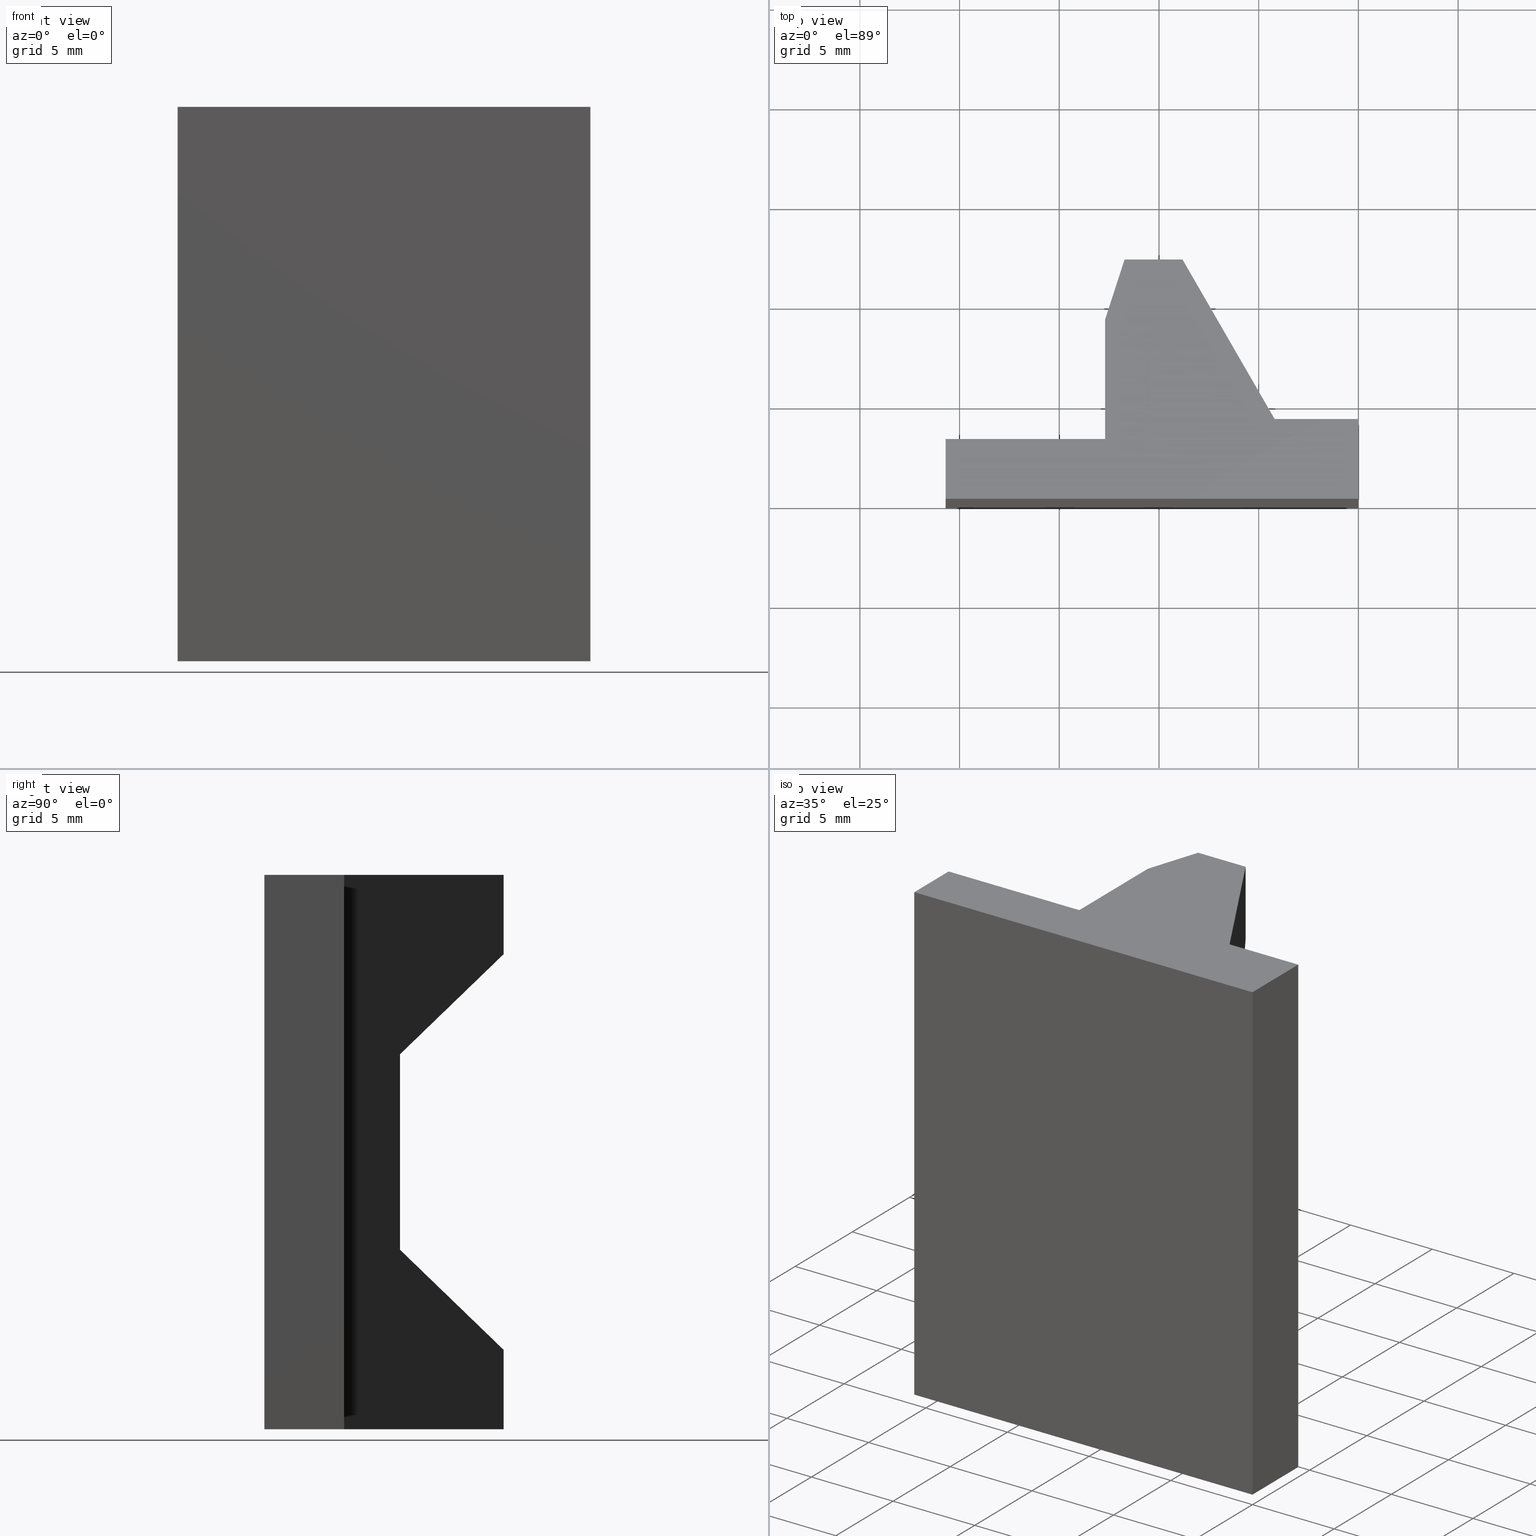
[diagram: canonical four-view strip — front | top / right | iso, engineering-drawing reading convention]
A machine part, canonical four-view strip (front | top / right | iso — engineering-drawing reading convention). The complete STEP part file that produces these views, byte-faithful:
ISO-10303-21;
HEADER;
/* Generated by software containing ST-Developer
 * from STEP Tools, Inc. (www.steptools.com) 
 */

FILE_DESCRIPTION(
/* description */ (''),
/* implementation_level */ '2;1');

FILE_NAME(
/* name */ 'E_3_01_10_05_00_WKZ-0254-01.stp',
/* time_stamp */ '2025-11-24T14:13:13+01:00',
/* author */ ('d.fischer'),
/* organization */ (''),
/* preprocessor_version */ 'ST-DEVELOPER v20',
/* originating_system */ 'Autodesk Inventor 2025',
/* authorisation */ '');

FILE_SCHEMA (('AUTOMOTIVE_DESIGN { 1 0 10303 214 3 1 1 }'));
ENDSEC;

DATA;
#10=MECHANICAL_DESIGN_GEOMETRIC_PRESENTATION_REPRESENTATION('',(#13),#522);
#11=SHAPE_REPRESENTATION_RELATIONSHIP('SRR','None',#529,#12);
#12=ADVANCED_BREP_SHAPE_REPRESENTATION('',(#14),#521);
#13=STYLED_ITEM('',(#538),#14);
#14=MANIFOLD_SOLID_BREP('Volumenk\X\F6rper1',#317);
#15=FACE_OUTER_BOUND('',#31,.T.);
#16=FACE_OUTER_BOUND('',#32,.T.);
#17=FACE_OUTER_BOUND('',#33,.T.);
#18=FACE_OUTER_BOUND('',#34,.T.);
#19=FACE_OUTER_BOUND('',#35,.T.);
#20=FACE_OUTER_BOUND('',#36,.T.);
#21=FACE_OUTER_BOUND('',#37,.T.);
#22=FACE_OUTER_BOUND('',#38,.T.);
#23=FACE_OUTER_BOUND('',#39,.T.);
#24=FACE_OUTER_BOUND('',#40,.T.);
#25=FACE_OUTER_BOUND('',#41,.T.);
#26=FACE_OUTER_BOUND('',#42,.T.);
#27=FACE_OUTER_BOUND('',#43,.T.);
#28=FACE_OUTER_BOUND('',#44,.T.);
#29=FACE_OUTER_BOUND('',#45,.T.);
#30=FACE_OUTER_BOUND('',#46,.T.);
#31=EDGE_LOOP('',(#201,#202,#203,#204,#205));
#32=EDGE_LOOP('',(#206,#207,#208,#209,#210));
#33=EDGE_LOOP('',(#211,#212,#213,#214));
#34=EDGE_LOOP('',(#215,#216,#217,#218));
#35=EDGE_LOOP('',(#219,#220,#221,#222));
#36=EDGE_LOOP('',(#223,#224,#225,#226));
#37=EDGE_LOOP('',(#227,#228,#229,#230));
#38=EDGE_LOOP('',(#231,#232,#233,#234,#235,#236,#237,#238));
#39=EDGE_LOOP('',(#239,#240,#241,#242,#243,#244,#245,#246,#247));
#40=EDGE_LOOP('',(#248,#249,#250,#251));
#41=EDGE_LOOP('',(#252,#253,#254,#255));
#42=EDGE_LOOP('',(#256,#257,#258,#259,#260,#261,#262,#263));
#43=EDGE_LOOP('',(#264,#265,#266,#267));
#44=EDGE_LOOP('',(#268,#269,#270,#271));
#45=EDGE_LOOP('',(#272,#273,#274,#275));
#46=EDGE_LOOP('',(#276,#277,#278,#279,#280,#281,#282,#283,#284));
#47=LINE('',#436,#89);
#48=LINE('',#438,#90);
#49=LINE('',#440,#91);
#50=LINE('',#442,#92);
#51=LINE('',#443,#93);
#52=LINE('',#447,#94);
#53=LINE('',#449,#95);
#54=LINE('',#451,#96);
#55=LINE('',#453,#97);
#56=LINE('',#454,#98);
#57=LINE('',#456,#99);
#58=LINE('',#457,#100);
#59=LINE('',#460,#101);
#60=LINE('',#462,#102);
#61=LINE('',#463,#103);
#62=LINE('',#466,#104);
#63=LINE('',#468,#105);
#64=LINE('',#469,#106);
#65=LINE('',#472,#107);
#66=LINE('',#473,#108);
#67=LINE('',#476,#109);
#68=LINE('',#477,#110);
#69=LINE('',#480,#111);
#70=LINE('',#482,#112);
#71=LINE('',#483,#113);
#72=LINE('',#487,#114);
#73=LINE('',#489,#115);
#74=LINE('',#491,#116);
#75=LINE('',#492,#117);
#76=LINE('',#494,#118);
#77=LINE('',#495,#119);
#78=LINE('',#499,#120);
#79=LINE('',#500,#121);
#80=LINE('',#501,#122);
#81=LINE('',#503,#123);
#82=LINE('',#506,#124);
#83=LINE('',#507,#125);
#84=LINE('',#510,#126);
#85=LINE('',#511,#127);
#86=LINE('',#514,#128);
#87=LINE('',#515,#129);
#88=LINE('',#517,#130);
#89=VECTOR('',#360,10.);
#90=VECTOR('',#361,10.);
#91=VECTOR('',#362,10.);
#92=VECTOR('',#363,10.);
#93=VECTOR('',#364,10.);
#94=VECTOR('',#367,10.);
#95=VECTOR('',#368,10.);
#96=VECTOR('',#369,10.);
#97=VECTOR('',#370,10.);
#98=VECTOR('',#371,10.);
#99=VECTOR('',#374,10.);
#100=VECTOR('',#375,10.);
#101=VECTOR('',#378,10.);
#102=VECTOR('',#379,10.);
#103=VECTOR('',#380,10.);
#104=VECTOR('',#383,10.);
#105=VECTOR('',#384,10.);
#106=VECTOR('',#385,10.);
#107=VECTOR('',#388,10.);
#108=VECTOR('',#389,10.);
#109=VECTOR('',#392,10.);
#110=VECTOR('',#393,10.);
#111=VECTOR('',#396,10.);
#112=VECTOR('',#397,10.);
#113=VECTOR('',#398,10.);
#114=VECTOR('',#401,10.);
#115=VECTOR('',#402,10.);
#116=VECTOR('',#403,10.);
#117=VECTOR('',#404,10.);
#118=VECTOR('',#405,10.);
#119=VECTOR('',#406,10.);
#120=VECTOR('',#409,10.);
#121=VECTOR('',#410,10.);
#122=VECTOR('',#411,10.);
#123=VECTOR('',#414,10.);
#124=VECTOR('',#417,10.);
#125=VECTOR('',#418,10.);
#126=VECTOR('',#421,10.);
#127=VECTOR('',#422,10.);
#128=VECTOR('',#425,10.);
#129=VECTOR('',#426,10.);
#130=VECTOR('',#429,10.);
#131=VERTEX_POINT('',#434);
#132=VERTEX_POINT('',#435);
#133=VERTEX_POINT('',#437);
#134=VERTEX_POINT('',#439);
#135=VERTEX_POINT('',#441);
#136=VERTEX_POINT('',#445);
#137=VERTEX_POINT('',#446);
#138=VERTEX_POINT('',#448);
#139=VERTEX_POINT('',#450);
#140=VERTEX_POINT('',#452);
#141=VERTEX_POINT('',#459);
#142=VERTEX_POINT('',#461);
#143=VERTEX_POINT('',#465);
#144=VERTEX_POINT('',#467);
#145=VERTEX_POINT('',#471);
#146=VERTEX_POINT('',#475);
#147=VERTEX_POINT('',#479);
#148=VERTEX_POINT('',#481);
#149=VERTEX_POINT('',#485);
#150=VERTEX_POINT('',#486);
#151=VERTEX_POINT('',#488);
#152=VERTEX_POINT('',#490);
#153=VERTEX_POINT('',#493);
#154=VERTEX_POINT('',#497);
#155=VERTEX_POINT('',#498);
#156=VERTEX_POINT('',#505);
#157=VERTEX_POINT('',#509);
#158=VERTEX_POINT('',#513);
#159=EDGE_CURVE('',#131,#132,#47,.T.);
#160=EDGE_CURVE('',#133,#131,#48,.T.);
#161=EDGE_CURVE('',#134,#133,#49,.T.);
#162=EDGE_CURVE('',#135,#134,#50,.T.);
#163=EDGE_CURVE('',#132,#135,#51,.T.);
#164=EDGE_CURVE('',#136,#137,#52,.T.);
#165=EDGE_CURVE('',#138,#136,#53,.T.);
#166=EDGE_CURVE('',#139,#138,#54,.T.);
#167=EDGE_CURVE('',#140,#139,#55,.T.);
#168=EDGE_CURVE('',#140,#137,#56,.T.);
#169=EDGE_CURVE('',#137,#131,#57,.T.);
#170=EDGE_CURVE('',#133,#140,#58,.T.);
#171=EDGE_CURVE('',#136,#141,#59,.T.);
#172=EDGE_CURVE('',#141,#142,#60,.T.);
#173=EDGE_CURVE('',#138,#142,#61,.T.);
#174=EDGE_CURVE('',#143,#135,#62,.T.);
#175=EDGE_CURVE('',#143,#144,#63,.T.);
#176=EDGE_CURVE('',#144,#132,#64,.T.);
#177=EDGE_CURVE('',#142,#145,#65,.T.);
#178=EDGE_CURVE('',#139,#145,#66,.T.);
#179=EDGE_CURVE('',#146,#134,#67,.T.);
#180=EDGE_CURVE('',#146,#143,#68,.T.);
#181=EDGE_CURVE('',#145,#147,#69,.T.);
#182=EDGE_CURVE('',#148,#147,#70,.T.);
#183=EDGE_CURVE('',#148,#146,#71,.T.);
#184=EDGE_CURVE('',#149,#150,#72,.T.);
#185=EDGE_CURVE('',#151,#149,#73,.T.);
#186=EDGE_CURVE('',#152,#151,#74,.T.);
#187=EDGE_CURVE('',#147,#152,#75,.T.);
#188=EDGE_CURVE('',#153,#141,#76,.T.);
#189=EDGE_CURVE('',#150,#153,#77,.T.);
#190=EDGE_CURVE('',#154,#155,#78,.T.);
#191=EDGE_CURVE('',#155,#152,#79,.T.);
#192=EDGE_CURVE('',#154,#151,#80,.T.);
#193=EDGE_CURVE('',#155,#148,#81,.T.);
#194=EDGE_CURVE('',#144,#156,#82,.T.);
#195=EDGE_CURVE('',#156,#153,#83,.T.);
#196=EDGE_CURVE('',#156,#157,#84,.T.);
#197=EDGE_CURVE('',#157,#150,#85,.T.);
#198=EDGE_CURVE('',#157,#158,#86,.T.);
#199=EDGE_CURVE('',#149,#158,#87,.T.);
#200=EDGE_CURVE('',#158,#154,#88,.T.);
#201=ORIENTED_EDGE('',*,*,#159,.F.);
#202=ORIENTED_EDGE('',*,*,#160,.F.);
#203=ORIENTED_EDGE('',*,*,#161,.F.);
#204=ORIENTED_EDGE('',*,*,#162,.F.);
#205=ORIENTED_EDGE('',*,*,#163,.F.);
#206=ORIENTED_EDGE('',*,*,#164,.F.);
#207=ORIENTED_EDGE('',*,*,#165,.F.);
#208=ORIENTED_EDGE('',*,*,#166,.F.);
#209=ORIENTED_EDGE('',*,*,#167,.F.);
#210=ORIENTED_EDGE('',*,*,#168,.T.);
#211=ORIENTED_EDGE('',*,*,#169,.F.);
#212=ORIENTED_EDGE('',*,*,#168,.F.);
#213=ORIENTED_EDGE('',*,*,#170,.F.);
#214=ORIENTED_EDGE('',*,*,#160,.T.);
#215=ORIENTED_EDGE('',*,*,#165,.T.);
#216=ORIENTED_EDGE('',*,*,#171,.T.);
#217=ORIENTED_EDGE('',*,*,#172,.T.);
#218=ORIENTED_EDGE('',*,*,#173,.F.);
#219=ORIENTED_EDGE('',*,*,#163,.T.);
#220=ORIENTED_EDGE('',*,*,#174,.F.);
#221=ORIENTED_EDGE('',*,*,#175,.T.);
#222=ORIENTED_EDGE('',*,*,#176,.T.);
#223=ORIENTED_EDGE('',*,*,#166,.T.);
#224=ORIENTED_EDGE('',*,*,#173,.T.);
#225=ORIENTED_EDGE('',*,*,#177,.T.);
#226=ORIENTED_EDGE('',*,*,#178,.F.);
#227=ORIENTED_EDGE('',*,*,#162,.T.);
#228=ORIENTED_EDGE('',*,*,#179,.F.);
#229=ORIENTED_EDGE('',*,*,#180,.T.);
#230=ORIENTED_EDGE('',*,*,#174,.T.);
#231=ORIENTED_EDGE('',*,*,#161,.T.);
#232=ORIENTED_EDGE('',*,*,#170,.T.);
#233=ORIENTED_EDGE('',*,*,#167,.T.);
#234=ORIENTED_EDGE('',*,*,#178,.T.);
#235=ORIENTED_EDGE('',*,*,#181,.T.);
#236=ORIENTED_EDGE('',*,*,#182,.F.);
#237=ORIENTED_EDGE('',*,*,#183,.T.);
#238=ORIENTED_EDGE('',*,*,#179,.T.);
#239=ORIENTED_EDGE('',*,*,#184,.F.);
#240=ORIENTED_EDGE('',*,*,#185,.F.);
#241=ORIENTED_EDGE('',*,*,#186,.F.);
#242=ORIENTED_EDGE('',*,*,#187,.F.);
#243=ORIENTED_EDGE('',*,*,#181,.F.);
#244=ORIENTED_EDGE('',*,*,#177,.F.);
#245=ORIENTED_EDGE('',*,*,#172,.F.);
#246=ORIENTED_EDGE('',*,*,#188,.F.);
#247=ORIENTED_EDGE('',*,*,#189,.F.);
#248=ORIENTED_EDGE('',*,*,#190,.T.);
#249=ORIENTED_EDGE('',*,*,#191,.T.);
#250=ORIENTED_EDGE('',*,*,#186,.T.);
#251=ORIENTED_EDGE('',*,*,#192,.F.);
#252=ORIENTED_EDGE('',*,*,#193,.T.);
#253=ORIENTED_EDGE('',*,*,#182,.T.);
#254=ORIENTED_EDGE('',*,*,#187,.T.);
#255=ORIENTED_EDGE('',*,*,#191,.F.);
#256=ORIENTED_EDGE('',*,*,#159,.T.);
#257=ORIENTED_EDGE('',*,*,#176,.F.);
#258=ORIENTED_EDGE('',*,*,#194,.T.);
#259=ORIENTED_EDGE('',*,*,#195,.T.);
#260=ORIENTED_EDGE('',*,*,#188,.T.);
#261=ORIENTED_EDGE('',*,*,#171,.F.);
#262=ORIENTED_EDGE('',*,*,#164,.T.);
#263=ORIENTED_EDGE('',*,*,#169,.T.);
#264=ORIENTED_EDGE('',*,*,#196,.T.);
#265=ORIENTED_EDGE('',*,*,#197,.T.);
#266=ORIENTED_EDGE('',*,*,#189,.T.);
#267=ORIENTED_EDGE('',*,*,#195,.F.);
#268=ORIENTED_EDGE('',*,*,#198,.T.);
#269=ORIENTED_EDGE('',*,*,#199,.F.);
#270=ORIENTED_EDGE('',*,*,#184,.T.);
#271=ORIENTED_EDGE('',*,*,#197,.F.);
#272=ORIENTED_EDGE('',*,*,#200,.T.);
#273=ORIENTED_EDGE('',*,*,#192,.T.);
#274=ORIENTED_EDGE('',*,*,#185,.T.);
#275=ORIENTED_EDGE('',*,*,#199,.T.);
#276=ORIENTED_EDGE('',*,*,#190,.F.);
#277=ORIENTED_EDGE('',*,*,#200,.F.);
#278=ORIENTED_EDGE('',*,*,#198,.F.);
#279=ORIENTED_EDGE('',*,*,#196,.F.);
#280=ORIENTED_EDGE('',*,*,#194,.F.);
#281=ORIENTED_EDGE('',*,*,#175,.F.);
#282=ORIENTED_EDGE('',*,*,#180,.F.);
#283=ORIENTED_EDGE('',*,*,#183,.F.);
#284=ORIENTED_EDGE('',*,*,#193,.F.);
#285=PLANE('',#340);
#286=PLANE('',#341);
#287=PLANE('',#342);
#288=PLANE('',#343);
#289=PLANE('',#344);
#290=PLANE('',#345);
#291=PLANE('',#346);
#292=PLANE('',#347);
#293=PLANE('',#348);
#294=PLANE('',#349);
#295=PLANE('',#350);
#296=PLANE('',#351);
#297=PLANE('',#352);
#298=PLANE('',#353);
#299=PLANE('',#354);
#300=PLANE('',#355);
#301=ADVANCED_FACE('',(#15),#285,.F.);
#302=ADVANCED_FACE('',(#16),#286,.F.);
#303=ADVANCED_FACE('',(#17),#287,.F.);
#304=ADVANCED_FACE('',(#18),#288,.T.);
#305=ADVANCED_FACE('',(#19),#289,.T.);
#306=ADVANCED_FACE('',(#20),#290,.T.);
#307=ADVANCED_FACE('',(#21),#291,.T.);
#308=ADVANCED_FACE('',(#22),#292,.T.);
#309=ADVANCED_FACE('',(#23),#293,.F.);
#310=ADVANCED_FACE('',(#24),#294,.T.);
#311=ADVANCED_FACE('',(#25),#295,.T.);
#312=ADVANCED_FACE('',(#26),#296,.T.);
#313=ADVANCED_FACE('',(#27),#297,.T.);
#314=ADVANCED_FACE('',(#28),#298,.T.);
#315=ADVANCED_FACE('',(#29),#299,.T.);
#316=ADVANCED_FACE('',(#30),#300,.T.);
#317=CLOSED_SHELL('',(#301,#302,#303,#304,#305,#306,#307,#308,#309,#310,
#311,#312,#313,#314,#315,#316));
#318=DERIVED_UNIT_ELEMENT(#321,1.);
#319=DERIVED_UNIT_ELEMENT(#524,-3.);
#320=DIMENSIONAL_EXPONENTS(0.,1.,0.,0.,0.,0.,0.);
#321=(
CONVERSION_BASED_UNIT('gram',#323)
MASS_UNIT()
NAMED_UNIT(#320)
);
#322=(
MASS_UNIT()
NAMED_UNIT(*)
SI_UNIT(.KILO.,.GRAM.)
);
#323=MASS_MEASURE_WITH_UNIT(MASS_MEASURE(0.001),#322);
#324=DERIVED_UNIT((#318,#319));
#325=MEASURE_REPRESENTATION_ITEM('density measure',
POSITIVE_RATIO_MEASURE(8.03),#324);
#326=PROPERTY_DEFINITION_REPRESENTATION(#331,#328);
#327=PROPERTY_DEFINITION_REPRESENTATION(#332,#329);
#328=REPRESENTATION('material name',(#330),#521);
#329=REPRESENTATION('density',(#325),#521);
#330=DESCRIPTIVE_REPRESENTATION_ITEM('1.4301','1.4301');
#331=PROPERTY_DEFINITION('material property','material name',#531);
#332=PROPERTY_DEFINITION('material property','density of part',#531);
#333=DATE_TIME_ROLE('creation_date');
#334=APPLIED_DATE_AND_TIME_ASSIGNMENT(#335,#333,(#531));
#335=DATE_AND_TIME(#336,#337);
#336=CALENDAR_DATE(2011,26,10);
#337=LOCAL_TIME(0,0,0.,#338);
#338=COORDINATED_UNIVERSAL_TIME_OFFSET(0,0,.BEHIND.);
#339=AXIS2_PLACEMENT_3D('',#432,#356,#357);
#340=AXIS2_PLACEMENT_3D('',#433,#358,#359);
#341=AXIS2_PLACEMENT_3D('',#444,#365,#366);
#342=AXIS2_PLACEMENT_3D('',#455,#372,#373);
#343=AXIS2_PLACEMENT_3D('',#458,#376,#377);
#344=AXIS2_PLACEMENT_3D('',#464,#381,#382);
#345=AXIS2_PLACEMENT_3D('',#470,#386,#387);
#346=AXIS2_PLACEMENT_3D('',#474,#390,#391);
#347=AXIS2_PLACEMENT_3D('',#478,#394,#395);
#348=AXIS2_PLACEMENT_3D('',#484,#399,#400);
#349=AXIS2_PLACEMENT_3D('',#496,#407,#408);
#350=AXIS2_PLACEMENT_3D('',#502,#412,#413);
#351=AXIS2_PLACEMENT_3D('',#504,#415,#416);
#352=AXIS2_PLACEMENT_3D('',#508,#419,#420);
#353=AXIS2_PLACEMENT_3D('',#512,#423,#424);
#354=AXIS2_PLACEMENT_3D('',#516,#427,#428);
#355=AXIS2_PLACEMENT_3D('',#518,#430,#431);
#356=DIRECTION('axis',(0.,0.,1.));
#357=DIRECTION('refdir',(1.,0.,0.));
#358=DIRECTION('center_axis',(4.85811475358847E-16,-0.694658370458998,0.719339800338651));
#359=DIRECTION('ref_axis',(1.,0.,-6.75357425141966E-16));
#360=DIRECTION('',(-0.383548368044148,0.664325260612592,0.641531446994364));
#361=DIRECTION('',(1.,6.99353086378051E-16,0.));
#362=DIRECTION('',(5.32418405910155E-16,-0.719339800338651,-0.694658370458997));
#363=DIRECTION('',(-0.227593760386309,-0.700461569504754,-0.676427874854486));
#364=DIRECTION('',(-1.,-7.63974827717709E-16,-6.24044902201945E-17));
#365=DIRECTION('center_axis',(4.85811475358847E-16,-0.694658370458998,-0.719339800338651));
#366=DIRECTION('ref_axis',(-1.,0.,-6.75357425141966E-16));
#367=DIRECTION('',(0.383548368044148,-0.664325260612592,0.641531446994364));
#368=DIRECTION('',(1.,7.63974827717709E-16,-6.24044902201945E-17));
#369=DIRECTION('',(0.227593760386309,0.700461569504754,-0.676427874854486));
#370=DIRECTION('',(-5.32418405910155E-16,0.719339800338651,-0.694658370458997));
#371=DIRECTION('',(1.,6.99353086378051E-16,0.));
#372=DIRECTION('center_axis',(6.99353086378051E-16,-1.,0.));
#373=DIRECTION('ref_axis',(0.,0.,-1.));
#374=DIRECTION('',(0.,0.,1.));
#375=DIRECTION('',(0.,0.,-1.));
#376=DIRECTION('center_axis',(-7.63974827717709E-16,1.,0.));
#377=DIRECTION('ref_axis',(0.,0.,1.));
#378=DIRECTION('',(0.,0.,-1.));
#379=DIRECTION('',(-1.,-7.63974827717709E-16,0.));
#380=DIRECTION('',(0.,0.,-1.));
#381=DIRECTION('center_axis',(-7.63974827717709E-16,1.,0.));
#382=DIRECTION('ref_axis',(0.,0.,1.));
#383=DIRECTION('',(0.,0.,-1.));
#384=DIRECTION('',(1.,7.63974827717709E-16,0.));
#385=DIRECTION('',(0.,0.,-1.));
#386=DIRECTION('center_axis',(-0.951056516295154,0.309016994374947,0.));
#387=DIRECTION('ref_axis',(0.,0.,1.));
#388=DIRECTION('',(-0.309016994374947,-0.951056516295154,0.));
#389=DIRECTION('',(0.,0.,-1.));
#390=DIRECTION('center_axis',(-0.951056516295154,0.309016994374947,0.));
#391=DIRECTION('ref_axis',(0.,0.,1.));
#392=DIRECTION('',(0.,0.,-1.));
#393=DIRECTION('',(0.309016994374947,0.951056516295154,0.));
#394=DIRECTION('center_axis',(-1.,-7.40148683083437E-16,0.));
#395=DIRECTION('ref_axis',(0.,0.,1.));
#396=DIRECTION('',(7.40148683083437E-16,-1.,0.));
#397=DIRECTION('',(0.,0.,-1.));
#398=DIRECTION('',(-7.40148683083437E-16,1.,0.));
#399=DIRECTION('center_axis',(0.,0.,1.));
#400=DIRECTION('ref_axis',(1.,0.,0.));
#401=DIRECTION('',(-5.55111512312579E-16,1.,0.));
#402=DIRECTION('',(1.,1.22464679914735E-16,0.));
#403=DIRECTION('',(0.,-1.,0.));
#404=DIRECTION('',(-1.,-2.77555756156289E-16,0.));
#405=DIRECTION('',(-0.5,0.866025403784438,0.));
#406=DIRECTION('',(-1.,-5.28677630773884E-16,0.));
#407=DIRECTION('center_axis',(-1.,0.,0.));
#408=DIRECTION('ref_axis',(0.,0.,1.));
#409=DIRECTION('',(0.,1.,0.));
#410=DIRECTION('',(0.,0.,-1.));
#411=DIRECTION('',(0.,0.,-1.));
#412=DIRECTION('center_axis',(-2.77555756156289E-16,1.,0.));
#413=DIRECTION('ref_axis',(0.,0.,1.));
#414=DIRECTION('',(1.,2.77555756156289E-16,0.));
#415=DIRECTION('center_axis',(0.866025403784439,0.5,0.));
#416=DIRECTION('ref_axis',(0.,0.,-1.));
#417=DIRECTION('',(0.5,-0.866025403784438,0.));
#418=DIRECTION('',(0.,0.,-1.));
#419=DIRECTION('center_axis',(-5.28677630773884E-16,1.,0.));
#420=DIRECTION('ref_axis',(0.,0.,1.));
#421=DIRECTION('',(1.,5.28677630773884E-16,0.));
#422=DIRECTION('',(0.,0.,-1.));
#423=DIRECTION('center_axis',(1.,5.55111512312579E-16,0.));
#424=DIRECTION('ref_axis',(0.,0.,-1.));
#425=DIRECTION('',(5.55111512312579E-16,-1.,0.));
#426=DIRECTION('',(0.,0.,1.));
#427=DIRECTION('center_axis',(1.22464679914735E-16,-1.,0.));
#428=DIRECTION('ref_axis',(0.,0.,-1.));
#429=DIRECTION('',(-1.,-1.22464679914735E-16,0.));
#430=DIRECTION('center_axis',(0.,0.,1.));
#431=DIRECTION('ref_axis',(1.,0.,0.));
#432=CARTESIAN_POINT('',(0.,0.,0.));
#433=CARTESIAN_POINT('Origin',(-12.7,6.79999999999999,4.9));
#434=CARTESIAN_POINT('',(-5.81658075373096,6.8,4.9));
#435=CARTESIAN_POINT('',(-8.81880215351701,12.,9.92158162899679));
#436=CARTESIAN_POINT('',(-6.60335517069896,8.16273326428395,6.21597621637522));
#437=CARTESIAN_POINT('',(-12.7,6.79999999999999,4.9));
#438=CARTESIAN_POINT('',(-12.7,6.79999999999999,4.9));
#439=CARTESIAN_POINT('',(-12.7,9.,7.02451530457557));
#440=CARTESIAN_POINT('',(-12.7,4.59259171503423,2.76833059779242));
#441=CARTESIAN_POINT('',(-11.7252409113013,12.,9.92158162899679));
#442=CARTESIAN_POINT('',(-13.5796128754222,6.2928299342258,4.4102315605637));
#443=CARTESIAN_POINT('',(-12.2126204556506,12.,9.9215816289968));
#444=CARTESIAN_POINT('Origin',(-12.7,12.,-9.92158162899679));
#445=CARTESIAN_POINT('',(-8.81880215351701,12.,-9.92158162899679));
#446=CARTESIAN_POINT('',(-5.81658075373096,6.8,-4.9));
#447=CARTESIAN_POINT('',(-7.88363845030798,10.3802489526477,-8.35740622458667));
#448=CARTESIAN_POINT('',(-11.7252409113013,12.,-9.92158162899679));
#449=CARTESIAN_POINT('',(-12.2126204556506,12.,-9.92158162899679));
#450=CARTESIAN_POINT('',(-12.7,9.,-7.02451530457557));
#451=CARTESIAN_POINT('',(-12.7785809373337,8.75815274283218,-6.79096612311072));
#452=CARTESIAN_POINT('',(-12.7,6.79999999999999,-4.9));
#453=CARTESIAN_POINT('',(-12.7,7.19259171503423,-5.27912141229082));
#454=CARTESIAN_POINT('',(-12.7,6.79999999999999,-4.9));
#455=CARTESIAN_POINT('Origin',(-12.7,6.79999999999999,-4.9));
#456=CARTESIAN_POINT('',(-5.81658075373095,6.8,-2.45));
#457=CARTESIAN_POINT('',(-12.7,6.79999999999999,-2.45));
#458=CARTESIAN_POINT('Origin',(-11.7252409113013,12.,0.));
#459=CARTESIAN_POINT('',(-8.81880215351701,12.,-13.9));
#460=CARTESIAN_POINT('',(-8.81880215351701,12.,0.));
#461=CARTESIAN_POINT('',(-11.7252409113013,12.,-13.9));
#462=CARTESIAN_POINT('',(-11.7252409113013,12.,-13.9));
#463=CARTESIAN_POINT('',(-11.7252409113013,12.,0.));
#464=CARTESIAN_POINT('Origin',(-11.7252409113013,12.,0.));
#465=CARTESIAN_POINT('',(-11.7252409113013,12.,13.9));
#466=CARTESIAN_POINT('',(-11.7252409113013,12.,0.));
#467=CARTESIAN_POINT('',(-8.81880215351701,12.,13.9));
#468=CARTESIAN_POINT('',(-11.7252409113013,12.,13.9));
#469=CARTESIAN_POINT('',(-8.81880215351701,12.,0.));
#470=CARTESIAN_POINT('Origin',(-12.7,9.,0.));
#471=CARTESIAN_POINT('',(-12.7,9.,-13.9));
#472=CARTESIAN_POINT('',(-12.7,9.,-13.9));
#473=CARTESIAN_POINT('',(-12.7,9.,0.));
#474=CARTESIAN_POINT('Origin',(-12.7,9.,0.));
#475=CARTESIAN_POINT('',(-12.7,9.,13.9));
#476=CARTESIAN_POINT('',(-12.7,9.,0.));
#477=CARTESIAN_POINT('',(-12.7,9.,13.9));
#478=CARTESIAN_POINT('Origin',(-12.7,3.,0.));
#479=CARTESIAN_POINT('',(-12.7,3.,-13.9));
#480=CARTESIAN_POINT('',(-12.7,3.,-13.9));
#481=CARTESIAN_POINT('',(-12.7,3.,13.9));
#482=CARTESIAN_POINT('',(-12.7,3.,0.));
#483=CARTESIAN_POINT('',(-12.7,3.,13.9));
#484=CARTESIAN_POINT('Origin',(-10.1877548623983,3.77786097788378,-13.9));
#485=CARTESIAN_POINT('',(1.11022302462516E-15,3.18042584056346E-16,-13.9));
#486=CARTESIAN_POINT('',(-1.11022302462516E-15,4.,-13.9));
#487=CARTESIAN_POINT('',(-1.11022302462516E-15,4.,-13.9));
#488=CARTESIAN_POINT('',(-20.7,-2.21697629017867E-15,-13.9));
#489=CARTESIAN_POINT('',(1.11022302462516E-15,3.18042584056346E-16,-13.9));
#490=CARTESIAN_POINT('',(-20.7,3.,-13.9));
#491=CARTESIAN_POINT('',(-20.7,-2.21697629017867E-15,-13.9));
#492=CARTESIAN_POINT('',(-20.7,3.,-13.9));
#493=CARTESIAN_POINT('',(-4.2,3.99999999999999,-13.9));
#494=CARTESIAN_POINT('',(-8.81880215351701,12.,-13.9));
#495=CARTESIAN_POINT('',(-4.2,3.99999999999999,-13.9));
#496=CARTESIAN_POINT('Origin',(-20.7,-2.21697629017867E-15,0.));
#497=CARTESIAN_POINT('',(-20.7,-2.21697629017867E-15,13.9));
#498=CARTESIAN_POINT('',(-20.7,3.,13.9));
#499=CARTESIAN_POINT('',(-20.7,-2.21697629017867E-15,13.9));
#500=CARTESIAN_POINT('',(-20.7,3.,0.));
#501=CARTESIAN_POINT('',(-20.7,-2.21697629017867E-15,0.));
#502=CARTESIAN_POINT('Origin',(-20.7,3.,0.));
#503=CARTESIAN_POINT('',(-20.7,3.,13.9));
#504=CARTESIAN_POINT('Origin',(-8.81880215351701,12.,0.));
#505=CARTESIAN_POINT('',(-4.2,3.99999999999999,13.9));
#506=CARTESIAN_POINT('',(-8.81880215351701,12.,13.9));
#507=CARTESIAN_POINT('',(-4.2,3.99999999999999,0.));
#508=CARTESIAN_POINT('Origin',(-4.2,3.99999999999999,0.));
#509=CARTESIAN_POINT('',(-1.11022302462516E-15,4.,13.9));
#510=CARTESIAN_POINT('',(-4.2,3.99999999999999,13.9));
#511=CARTESIAN_POINT('',(-1.11022302462516E-15,4.,0.));
#512=CARTESIAN_POINT('Origin',(-1.11022302462516E-15,4.,0.));
#513=CARTESIAN_POINT('',(1.11022302462516E-15,3.18042584056346E-16,13.9));
#514=CARTESIAN_POINT('',(-1.11022302462516E-15,4.,13.9));
#515=CARTESIAN_POINT('',(1.11022302462516E-15,3.18042584056346E-16,0.));
#516=CARTESIAN_POINT('Origin',(1.11022302462516E-15,3.18042584056346E-16,
0.));
#517=CARTESIAN_POINT('',(1.11022302462516E-15,3.18042584056346E-16,13.9));
#518=CARTESIAN_POINT('Origin',(-10.1877548623983,3.77786097788378,13.9));
#519=UNCERTAINTY_MEASURE_WITH_UNIT(LENGTH_MEASURE(0.01),#523,
'DISTANCE_ACCURACY_VALUE',
'Maximum model space distance between geometric entities at asserted c
onnectivities');
#520=UNCERTAINTY_MEASURE_WITH_UNIT(LENGTH_MEASURE(0.01),#523,
'DISTANCE_ACCURACY_VALUE',
'Maximum model space distance between geometric entities at asserted c
onnectivities');
#521=(
GEOMETRIC_REPRESENTATION_CONTEXT(3)
GLOBAL_UNCERTAINTY_ASSIGNED_CONTEXT((#519))
GLOBAL_UNIT_ASSIGNED_CONTEXT((#523,#525,#526))
REPRESENTATION_CONTEXT('','3D')
);
#522=(
GEOMETRIC_REPRESENTATION_CONTEXT(3)
GLOBAL_UNCERTAINTY_ASSIGNED_CONTEXT((#520))
GLOBAL_UNIT_ASSIGNED_CONTEXT((#523,#525,#526))
REPRESENTATION_CONTEXT('','3D')
);
#523=(
LENGTH_UNIT()
NAMED_UNIT(*)
SI_UNIT(.MILLI.,.METRE.)
);
#524=(
LENGTH_UNIT()
NAMED_UNIT(*)
SI_UNIT(.CENTI.,.METRE.)
);
#525=(
NAMED_UNIT(*)
PLANE_ANGLE_UNIT()
SI_UNIT($,.RADIAN.)
);
#526=(
NAMED_UNIT(*)
SI_UNIT($,.STERADIAN.)
SOLID_ANGLE_UNIT()
);
#527=SHAPE_DEFINITION_REPRESENTATION(#528,#529);
#528=PRODUCT_DEFINITION_SHAPE('',$,#531);
#529=SHAPE_REPRESENTATION('',(#339),#521);
#530=PRODUCT_DEFINITION_CONTEXT('part definition',#535,'design');
#531=PRODUCT_DEFINITION('WKZ-0254','E_3_01_10_05_00_WKZ-0254-01',#532,#530);
#532=PRODUCT_DEFINITION_FORMATION('',$,#537);
#533=PRODUCT_RELATED_PRODUCT_CATEGORY('E_3_01_10_05_00_WKZ-0254-01',
'E_3_01_10_05_00_WKZ-0254-01',(#537));
#534=APPLICATION_PROTOCOL_DEFINITION('international standard',
'automotive_design',2009,#535);
#535=APPLICATION_CONTEXT(
'Core Data for Automotive Mechanical Design Process');
#536=PRODUCT_CONTEXT('part definition',#535,'mechanical');
#537=PRODUCT('WKZ-0254','E_3_01_10_05_00_WKZ-0254-01',$,(#536));
#538=PRESENTATION_STYLE_ASSIGNMENT((#539));
#539=SURFACE_STYLE_USAGE(.BOTH.,#542);
#540=SURFACE_STYLE_RENDERING_WITH_PROPERTIES($,#546,(#541));
#541=SURFACE_STYLE_TRANSPARENT(0.);
#542=SURFACE_SIDE_STYLE('',(#543,#540));
#543=SURFACE_STYLE_FILL_AREA(#544);
#544=FILL_AREA_STYLE('',(#545));
#545=FILL_AREA_STYLE_COLOUR('',#546);
#546=COLOUR_RGB('',0.92156862745098,0.92156862745098,0.92156862745098);
ENDSEC;
END-ISO-10303-21;
